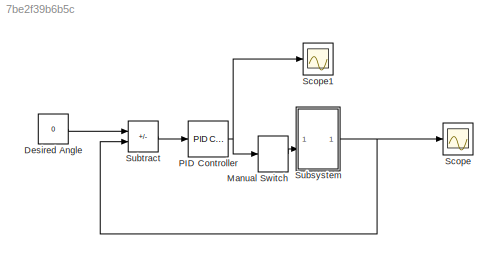
MODEL slx_7be2f39b6b5c
KIND model
CONFIG AbsTol = auto
CONFIG EnableMultiTasking = off
CONFIG FixedStep = 1e-4
CONFIG MaxStep = auto
CONFIG MinStep = auto
CONFIG RelTol = 1e-3
CONFIG SampleTimeConstraint = Unconstrained
CONFIG SolverName = FixedStepAuto
CONFIG StartTime = 0.0
CONFIG StopTime = 20
BLOCK [Constant] Desired Angle
  Value = 0
BLOCK [ManualSwitch] Manual Switch
BLOCK [Reference] PID Controller  REF=slpidlib/PID Controller
  LibrarySourceBlock = simulink/Continuous/PID Controller
  SourceBlock = slpidlib/PID Controller
  SourceType = PID 1dof
BLOCK [Scope] Scope
  Floating = off
  NumInputPorts = 1
  ScopeSpecificationString = Simulink.scopes.TimeScopeBlockCfg('CurrentConfiguration', extmgr.ConfigurationSet(extmgr.Configuration('Core','General UI',true),extmgr.Configuration('Core','Source UI',true),extmgr.Configuration('Sources','WiredSimulink',true,'DataLoggingVariableName','ScopeData1'),extmgr.Configuration('Visuals','Time Domain',true,'SerializedDisplays',{struct('MinYLimReal','-0.000017','MaxYLimReal','0.000064','YL...<+1432ch>
BLOCK [Scope] Scope1
  Floating = off
  NumInputPorts = 1
  ScopeSpecificationString = Simulink.scopes.TimeScopeBlockCfg('CurrentConfiguration', extmgr.ConfigurationSet(extmgr.Configuration('Core','General UI',true),extmgr.Configuration('Core','Source UI',true),extmgr.Configuration('Sources','WiredSimulink',true,'DataLoggingVariableName','ScopeData1'),extmgr.Configuration('Visuals','Time Domain',true,'SerializedDisplays',{struct('MinYLimReal','-0.25946','MaxYLimReal','0.05535','YLab...<+1429ch>
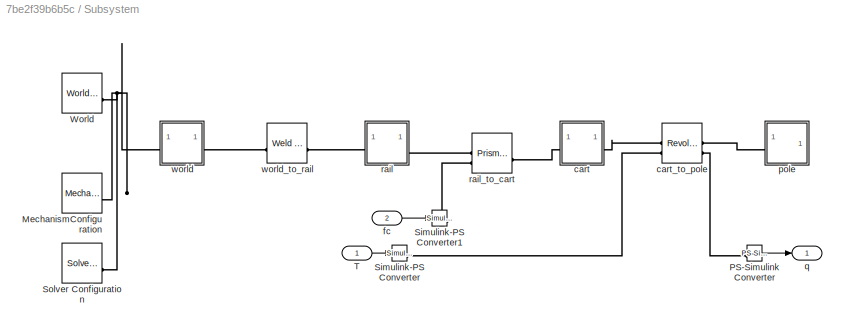
BLOCK [SubSystem] Subsystem
BLOCK [Reference] Subsystem/MechanismConfiguration  REF=sm_lib/Utilities/Mechanism
Configuration
  SourceBlock = sm_lib/Utilities/Mechanism\nConfiguration
  SourceType = Mechanism\nConfiguration
BLOCK [Reference] Subsystem/PS-Simulink Converter  REF=nesl_utility/PS-Simulink
Converter
  SourceBlock = nesl_utility/PS-Simulink\nConverter
  SourceType = PS-Simulink\nConverter
BLOCK [Reference] Subsystem/Simulink-PS Converter  REF=nesl_utility/Simulink-PS
Converter
  SourceBlock = nesl_utility/Simulink-PS\nConverter
  SourceType = Simulink-PS\nConverter
BLOCK [Reference] Subsystem/Simulink-PS Converter1  REF=nesl_utility/Simulink-PS
Converter
  SourceBlock = nesl_utility/Simulink-PS\nConverter
  SourceType = Simulink-PS\nConverter
BLOCK [Reference] Subsystem/Solver Configuration  REF=nesl_utility/Solver
Configuration
  SourceBlock = nesl_utility/Solver\nConfiguration
  SourceType = Solver\nConfiguration
BLOCK [Inport] Subsystem/T
BLOCK [Reference] Subsystem/World  REF=sm_lib/Frames and
Transforms/World Frame
  SourceBlock = sm_lib/Frames and\nTransforms/World Frame
  SourceType = World Frame
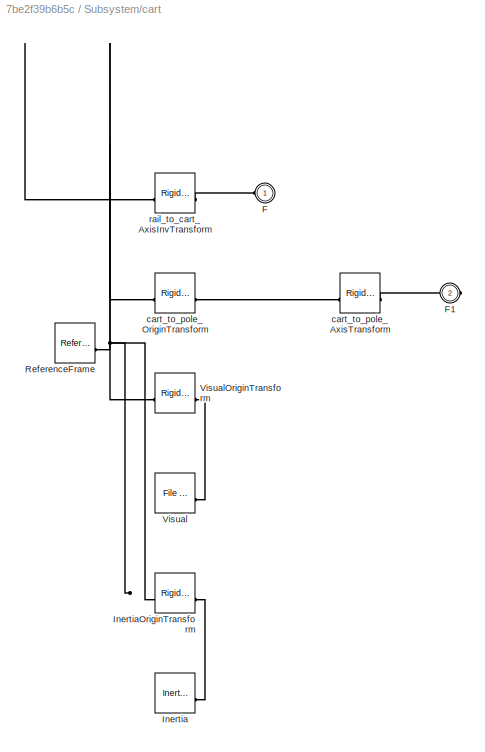
BLOCK [SubSystem] Subsystem/cart
BLOCK [PMIOPort] Subsystem/cart/F
  Side = Left
BLOCK [PMIOPort] Subsystem/cart/F1
  Port = 2
  Side = Right
BLOCK [Reference] Subsystem/cart/Inertia  REF=sm_lib/Body Elements/Inertia
  SourceBlock = sm_lib/Body Elements/Inertia
  SourceType = Inertia
BLOCK [Reference] Subsystem/cart/InertiaOriginTransform  REF=sm_lib/Frames and
Transforms/Rigid
Transform
  SourceBlock = sm_lib/Frames and\nTransforms/Rigid\nTransform
  SourceType = Rigid\nTransform
BLOCK [Reference] Subsystem/cart/ReferenceFrame  REF=sm_lib/Frames and
Transforms/Reference
Frame
  SourceBlock = sm_lib/Frames and\nTransforms/Reference\nFrame
  SourceType = Reference\nFrame
BLOCK [Reference] Subsystem/cart/Visual  REF=sm_lib/Body Elements/File Solid
  SourceBlock = sm_lib/Body Elements/File Solid
  SourceType = File Solid
BLOCK [Reference] Subsystem/cart/VisualOriginTransform  REF=sm_lib/Frames and
Transforms/Rigid
Transform
  SourceBlock = sm_lib/Frames and\nTransforms/Rigid\nTransform
  SourceType = Rigid\nTransform
BLOCK [Reference] Subsystem/cart/cart_to_pole_AxisTransform  REF=sm_lib/Frames and
Transforms/Rigid
Transform
  SourceBlock = sm_lib/Frames and\nTransforms/Rigid\nTransform
  SourceType = Rigid\nTransform
BLOCK [Reference] Subsystem/cart/cart_to_pole_OriginTransform  REF=sm_lib/Frames and
Transforms/Rigid
Transform
  SourceBlock = sm_lib/Frames and\nTransforms/Rigid\nTransform
  SourceType = Rigid\nTransform
BLOCK [Reference] Subsystem/cart/rail_to_cart_AxisInvTransform  REF=sm_lib/Frames and
Transforms/Rigid
Transform
  SourceBlock = sm_lib/Frames and\nTransforms/Rigid\nTransform
  SourceType = Rigid\nTransform
BLOCK [Reference] Subsystem/cart_to_pole  REF=sm_lib/Joints/Revolute Joint
  SourceBlock = sm_lib/Joints/Revolute Joint
  SourceType = Revolute Joint
BLOCK [Inport] Subsystem/fc
  Port = 2
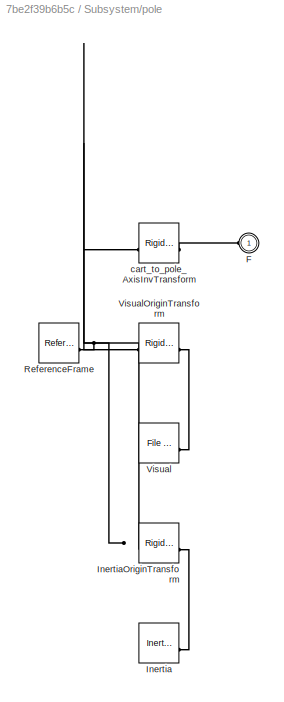
BLOCK [SubSystem] Subsystem/pole
BLOCK [PMIOPort] Subsystem/pole/F
  Side = Left
BLOCK [Reference] Subsystem/pole/Inertia  REF=sm_lib/Body Elements/Inertia
  SourceBlock = sm_lib/Body Elements/Inertia
  SourceType = Inertia
BLOCK [Reference] Subsystem/pole/InertiaOriginTransform  REF=sm_lib/Frames and
Transforms/Rigid
Transform
  SourceBlock = sm_lib/Frames and\nTransforms/Rigid\nTransform
  SourceType = Rigid\nTransform
BLOCK [Reference] Subsystem/pole/ReferenceFrame  REF=sm_lib/Frames and
Transforms/Reference
Frame
  SourceBlock = sm_lib/Frames and\nTransforms/Reference\nFrame
  SourceType = Reference\nFrame
BLOCK [Reference] Subsystem/pole/Visual  REF=sm_lib/Body Elements/File Solid
  SourceBlock = sm_lib/Body Elements/File Solid
  SourceType = File Solid
BLOCK [Reference] Subsystem/pole/VisualOriginTransform  REF=sm_lib/Frames and
Transforms/Rigid
Transform
  SourceBlock = sm_lib/Frames and\nTransforms/Rigid\nTransform
  SourceType = Rigid\nTransform
BLOCK [Reference] Subsystem/pole/cart_to_pole_AxisInvTransform  REF=sm_lib/Frames and
Transforms/Rigid
Transform
  SourceBlock = sm_lib/Frames and\nTransforms/Rigid\nTransform
  SourceType = Rigid\nTransform
BLOCK [Outport] Subsystem/q
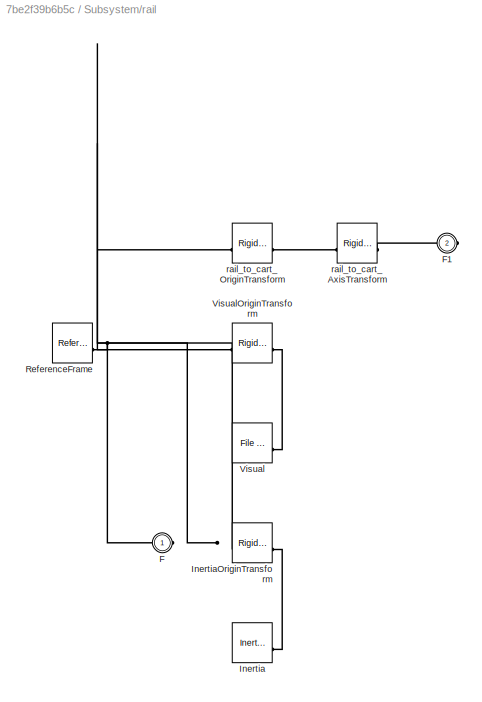
BLOCK [SubSystem] Subsystem/rail
BLOCK [PMIOPort] Subsystem/rail/F
  Side = Left
BLOCK [PMIOPort] Subsystem/rail/F1
  Port = 2
  Side = Right
BLOCK [Reference] Subsystem/rail/Inertia  REF=sm_lib/Body Elements/Inertia
  SourceBlock = sm_lib/Body Elements/Inertia
  SourceType = Inertia
BLOCK [Reference] Subsystem/rail/InertiaOriginTransform  REF=sm_lib/Frames and
Transforms/Rigid
Transform
  SourceBlock = sm_lib/Frames and\nTransforms/Rigid\nTransform
  SourceType = Rigid\nTransform
BLOCK [Reference] Subsystem/rail/ReferenceFrame  REF=sm_lib/Frames and
Transforms/Reference
Frame
  SourceBlock = sm_lib/Frames and\nTransforms/Reference\nFrame
  SourceType = Reference\nFrame
BLOCK [Reference] Subsystem/rail/Visual  REF=sm_lib/Body Elements/File Solid
  SourceBlock = sm_lib/Body Elements/File Solid
  SourceType = File Solid
BLOCK [Reference] Subsystem/rail/VisualOriginTransform  REF=sm_lib/Frames and
Transforms/Rigid
Transform
  SourceBlock = sm_lib/Frames and\nTransforms/Rigid\nTransform
  SourceType = Rigid\nTransform
BLOCK [Reference] Subsystem/rail/rail_to_cart_AxisTransform  REF=sm_lib/Frames and
Transforms/Rigid
Transform
  SourceBlock = sm_lib/Frames and\nTransforms/Rigid\nTransform
  SourceType = Rigid\nTransform
BLOCK [Reference] Subsystem/rail/rail_to_cart_OriginTransform  REF=sm_lib/Frames and
Transforms/Rigid
Transform
  SourceBlock = sm_lib/Frames and\nTransforms/Rigid\nTransform
  SourceType = Rigid\nTransform
BLOCK [Reference] Subsystem/rail_to_cart  REF=sm_lib/Joints/Prismatic
Joint
  SourceBlock = sm_lib/Joints/Prismatic\nJoint
  SourceType = Prismatic\nJoint
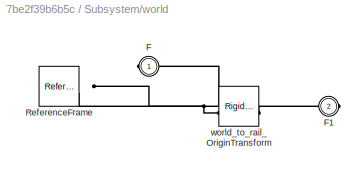
BLOCK [SubSystem] Subsystem/world
BLOCK [PMIOPort] Subsystem/world/F
  Side = Left
BLOCK [PMIOPort] Subsystem/world/F1
  Port = 2
  Side = Right
BLOCK [Reference] Subsystem/world/ReferenceFrame  REF=sm_lib/Frames and
Transforms/Reference
Frame
  SourceBlock = sm_lib/Frames and\nTransforms/Reference\nFrame
  SourceType = Reference\nFrame
BLOCK [Reference] Subsystem/world/world_to_rail_OriginTransform  REF=sm_lib/Frames and
Transforms/Rigid
Transform
  SourceBlock = sm_lib/Frames and\nTransforms/Rigid\nTransform
  SourceType = Rigid\nTransform
BLOCK [Reference] Subsystem/world_to_rail  REF=sm_lib/Joints/Weld Joint
  SourceBlock = sm_lib/Joints/Weld Joint
  SourceType = Weld Joint
BLOCK [Sum] Subtract
  IconShape = rectangular
  Inputs = +-
LINE Desired Angle:1 -> Subtract:1
LINE Manual Switch:1 -> Subsystem:2
NET PID Controller:1 -> Manual Switch:1, Scope1:1
LINE Subsystem/PS-Simulink Converter:1 -> Subsystem/q:1
LINE Subsystem/T:1 -> Subsystem/Simulink-PS Converter:1
LINE Subsystem/fc:1 -> Subsystem/Simulink-PS Converter1:1
NET Subsystem:1 -> Scope:1, Subtract:2
LINE Subtract:1 -> PID Controller:1
PNET net1: Subsystem/MechanismConfiguration:RConn1 -- Subsystem/Solver Configuration:RConn1 -- Subsystem/World:RConn1 -- Subsystem/world:LConn1
PLINE Subsystem/PS-Simulink Converter:LConn1 -- Subsystem/cart_to_pole:RConn2
PLINE Subsystem/Simulink-PS Converter1:RConn1 -- Subsystem/rail_to_cart:LConn2
PLINE Subsystem/Simulink-PS Converter:RConn1 -- Subsystem/cart_to_pole:LConn2
PLINE Subsystem/cart/F1:RConn1 -- Subsystem/cart/cart_to_pole_AxisTransform:RConn1
PLINE Subsystem/cart/F:RConn1 -- Subsystem/cart/rail_to_cart_AxisInvTransform:RConn1
PLINE Subsystem/cart/Inertia:RConn1 -- Subsystem/cart/InertiaOriginTransform:RConn1
PNET net2: Subsystem/cart/InertiaOriginTransform:LConn1 -- Subsystem/cart/ReferenceFrame:RConn1 -- Subsystem/cart/VisualOriginTransform:LConn1 -- Subsystem/cart/cart_to_pole_OriginTransform:LConn1 -- Subsystem/cart/rail_to_cart_AxisInvTransform:LConn1
PLINE Subsystem/cart/Visual:RConn1 -- Subsystem/cart/VisualOriginTransform:RConn1
PLINE Subsystem/cart/cart_to_pole_AxisTransform:LConn1 -- Subsystem/cart/cart_to_pole_OriginTransform:RConn1
PLINE Subsystem/cart:LConn1 -- Subsystem/rail_to_cart:RConn1
PLINE Subsystem/cart:RConn1 -- Subsystem/cart_to_pole:LConn1
PLINE Subsystem/cart_to_pole:RConn1 -- Subsystem/pole:LConn1
PLINE Subsystem/pole/F:RConn1 -- Subsystem/pole/cart_to_pole_AxisInvTransform:RConn1
PLINE Subsystem/pole/Inertia:RConn1 -- Subsystem/pole/InertiaOriginTransform:RConn1
PNET net3: Subsystem/pole/InertiaOriginTransform:LConn1 -- Subsystem/pole/ReferenceFrame:RConn1 -- Subsystem/pole/VisualOriginTransform:LConn1 -- Subsystem/pole/cart_to_pole_AxisInvTransform:LConn1
PLINE Subsystem/pole/Visual:RConn1 -- Subsystem/pole/VisualOriginTransform:RConn1
PLINE Subsystem/rail/F1:RConn1 -- Subsystem/rail/rail_to_cart_AxisTransform:RConn1
PNET net4: Subsystem/rail/F:RConn1 -- Subsystem/rail/InertiaOriginTransform:LConn1 -- Subsystem/rail/ReferenceFrame:RConn1 -- Subsystem/rail/VisualOriginTransform:LConn1 -- Subsystem/rail/rail_to_cart_OriginTransform:LConn1
PLINE Subsystem/rail/Inertia:RConn1 -- Subsystem/rail/InertiaOriginTransform:RConn1
PLINE Subsystem/rail/Visual:RConn1 -- Subsystem/rail/VisualOriginTransform:RConn1
PLINE Subsystem/rail/rail_to_cart_AxisTransform:LConn1 -- Subsystem/rail/rail_to_cart_OriginTransform:RConn1
PLINE Subsystem/rail:LConn1 -- Subsystem/world_to_rail:RConn1
PLINE Subsystem/rail:RConn1 -- Subsystem/rail_to_cart:LConn1
PLINE Subsystem/world/F1:RConn1 -- Subsystem/world/world_to_rail_OriginTransform:RConn1
PNET net5: Subsystem/world/F:RConn1 -- Subsystem/world/ReferenceFrame:RConn1 -- Subsystem/world/world_to_rail_OriginTransform:LConn1
PLINE Subsystem/world:RConn1 -- Subsystem/world_to_rail:LConn1
note: NET lines group one-source signal fan-out (src -> all destinations, sorted); 1:1 wires keep LINE; PNET lines group multi-terminal physical nets as a canonical sorted terminal list (undirected conserving connections); 2-terminal nets keep the pairwise PLINE form
